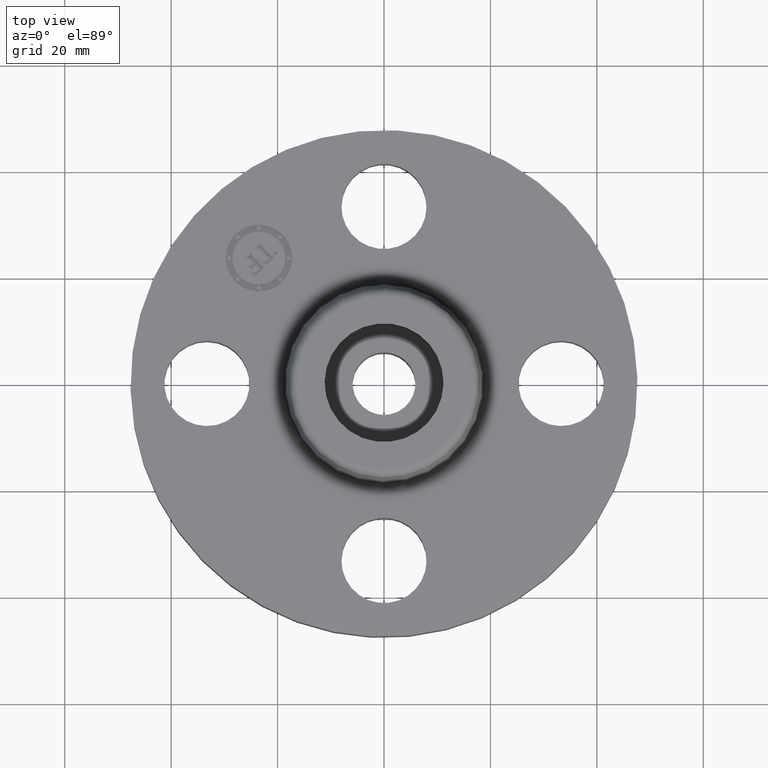
[diagram: clean part render]
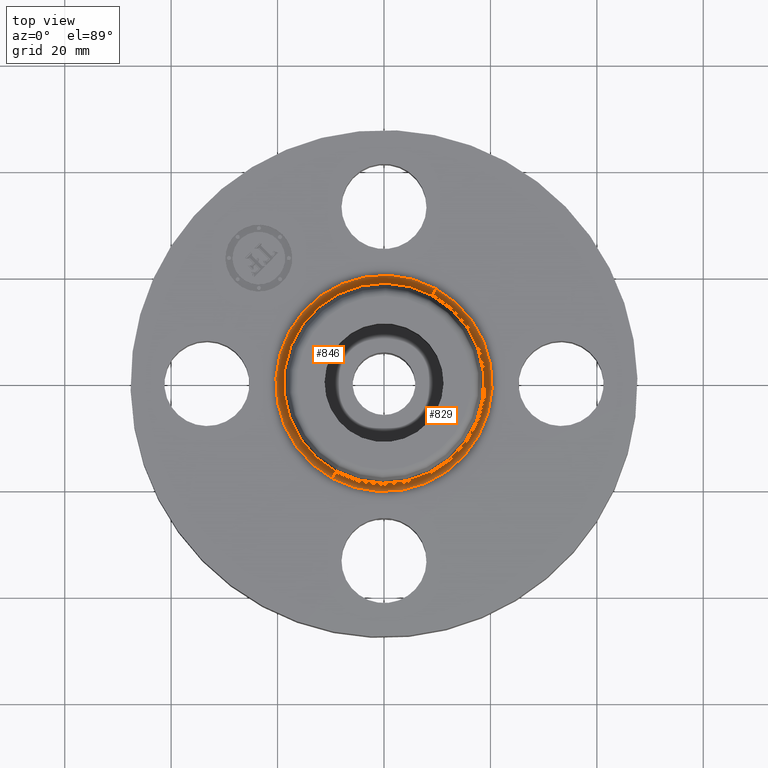
[diagram: same view with one multi-face feature highlighted, each face labeled with its STEP entity id]
A machine part, top view. The highlighted faces form ONE feature: a constant-radius fillet chain: 2 tangent blend faces with common blend radius 1.524 mm. The faces share edges in the B-rep.
Their STEP definitions:
[1] entity #829 (Torus):
#793=AXIS2_PLACEMENT_3D('Torus Axis2P3D',#790,#791,#792) ;
#797=AXIS2_PLACEMENT_3D('Circle Axis2P3D',#795,#796,$) ;
#806=AXIS2_PLACEMENT_3D('Circle Axis2P3D',#804,#805,$) ;
#813=AXIS2_PLACEMENT_3D('Circle Axis2P3D',#811,#812,$) ;
#820=AXIS2_PLACEMENT_3D('Circle Axis2P3D',#818,#819,$) ;
#790=CARTESIAN_POINT('Axis2P3D Location',(0.,0.,0.620000000002)) ;
#795=CARTESIAN_POINT('Axis2P3D Location',(0.,0.,0.560000000002)) ;
#799=CARTESIAN_POINT('Vertex',(0.383706301512,0.702369673661,0.560000000002)) ;
#801=CARTESIAN_POINT('Vertex',(-0.383706301512,-0.702369673661,0.560000000002)) ;
#804=CARTESIAN_POINT('Axis2P3D Location',(0.383706301512,0.702369673661,0.620000000002)) ;
#808=CARTESIAN_POINT('Vertex',(0.355377782267,0.650514667009,0.609581109342)) ;
#811=CARTESIAN_POINT('Axis2P3D Location',(0.,0.,0.609581109342)) ;
#815=CARTESIAN_POINT('Vertex',(-0.355377782267,-0.650514667009,0.609581109342)) ;
#818=CARTESIAN_POINT('Axis2P3D Location',(-0.383706301512,-0.702369673661,0.620000000002)) ;
#791=DIRECTION('Axis2P3D Direction',(0.,0.,-0.0393700787402)) ;
#792=DIRECTION('Axis2P3D XDirection',(-0.0188750212049,-0.0345504945626,0.)) ;
#796=DIRECTION('Axis2P3D Direction',(0.,0.,-0.0393700787402)) ;
#805=DIRECTION('Axis2P3D Direction',(-0.0345504945626,0.0188750212049,0.)) ;
#812=DIRECTION('Axis2P3D Direction',(0.,0.,-0.0393700787402)) ;
#819=DIRECTION('Axis2P3D Direction',(0.0345504945626,-0.0188750212049,0.)) ;
#824=ORIENTED_EDGE('',*,*,#803,.F.) ;
#825=ORIENTED_EDGE('',*,*,#810,.T.) ;
#826=ORIENTED_EDGE('',*,*,#817,.T.) ;
#827=ORIENTED_EDGE('',*,*,#822,.F.) ;
#829=ADVANCED_FACE('PartBody',(#828),#794,.F.) ;
#798=CIRCLE('generated circle',#797,0.800345977874) ;
#807=CIRCLE('generated circle',#806,0.0600000000002) ;
#814=CIRCLE('generated circle',#813,0.741257512693) ;
#821=CIRCLE('generated circle',#820,0.0600000000002) ;
#794=TOROIDAL_SURFACE('homeo Torus',#793,0.800345977874,0.0600000000002) ;
#803=EDGE_CURVE('',#800,#802,#798,.T.) ;
#810=EDGE_CURVE('',#800,#809,#807,.T.) ;
#817=EDGE_CURVE('',#809,#816,#814,.T.) ;
#822=EDGE_CURVE('',#802,#816,#821,.T.) ;
#823=EDGE_LOOP('',(#824,#825,#826,#827)) ;
#828=FACE_OUTER_BOUND('',#823,.T.) ;
#800=VERTEX_POINT('',#799) ;
#802=VERTEX_POINT('',#801) ;
#809=VERTEX_POINT('',#808) ;
#816=VERTEX_POINT('',#815) ;
[2] entity #846 (Torus):
#793=AXIS2_PLACEMENT_3D('Torus Axis2P3D',#790,#791,#792) ;
#806=AXIS2_PLACEMENT_3D('Circle Axis2P3D',#804,#805,$) ;
#820=AXIS2_PLACEMENT_3D('Circle Axis2P3D',#818,#819,$) ;
#832=AXIS2_PLACEMENT_3D('Circle Axis2P3D',#830,#831,$) ;
#837=AXIS2_PLACEMENT_3D('Circle Axis2P3D',#835,#836,$) ;
#790=CARTESIAN_POINT('Axis2P3D Location',(0.,0.,0.620000000002)) ;
#799=CARTESIAN_POINT('Vertex',(0.383706301512,0.702369673661,0.560000000002)) ;
#801=CARTESIAN_POINT('Vertex',(-0.383706301512,-0.702369673661,0.560000000002)) ;
#804=CARTESIAN_POINT('Axis2P3D Location',(0.383706301512,0.702369673661,0.620000000002)) ;
#808=CARTESIAN_POINT('Vertex',(0.355377782267,0.650514667009,0.609581109342)) ;
#815=CARTESIAN_POINT('Vertex',(-0.355377782267,-0.650514667009,0.609581109342)) ;
#818=CARTESIAN_POINT('Axis2P3D Location',(-0.383706301512,-0.702369673661,0.620000000002)) ;
#830=CARTESIAN_POINT('Axis2P3D Location',(0.,0.,0.560000000002)) ;
#835=CARTESIAN_POINT('Axis2P3D Location',(0.,0.,0.609581109342)) ;
#791=DIRECTION('Axis2P3D Direction',(0.,0.,-0.0393700787402)) ;
#792=DIRECTION('Axis2P3D XDirection',(-0.0188750212049,-0.0345504945626,0.)) ;
#805=DIRECTION('Axis2P3D Direction',(-0.0345504945626,0.0188750212049,0.)) ;
#819=DIRECTION('Axis2P3D Direction',(0.0345504945626,-0.0188750212049,0.)) ;
#831=DIRECTION('Axis2P3D Direction',(0.,0.,-0.0393700787402)) ;
#836=DIRECTION('Axis2P3D Direction',(0.,0.,-0.0393700787402)) ;
#841=ORIENTED_EDGE('',*,*,#834,.F.) ;
#842=ORIENTED_EDGE('',*,*,#822,.T.) ;
#843=ORIENTED_EDGE('',*,*,#839,.T.) ;
#844=ORIENTED_EDGE('',*,*,#810,.F.) ;
#846=ADVANCED_FACE('PartBody',(#845),#794,.F.) ;
#807=CIRCLE('generated circle',#806,0.0600000000002) ;
#821=CIRCLE('generated circle',#820,0.0600000000002) ;
#833=CIRCLE('generated circle',#832,0.800345977874) ;
#838=CIRCLE('generated circle',#837,0.741257512693) ;
#794=TOROIDAL_SURFACE('homeo Torus',#793,0.800345977874,0.0600000000002) ;
#810=EDGE_CURVE('',#800,#809,#807,.T.) ;
#822=EDGE_CURVE('',#802,#816,#821,.T.) ;
#834=EDGE_CURVE('',#802,#800,#833,.T.) ;
#839=EDGE_CURVE('',#816,#809,#838,.T.) ;
#840=EDGE_LOOP('',(#841,#842,#843,#844)) ;
#845=FACE_OUTER_BOUND('',#840,.T.) ;
#800=VERTEX_POINT('',#799) ;
#802=VERTEX_POINT('',#801) ;
#809=VERTEX_POINT('',#808) ;
#816=VERTEX_POINT('',#815) ;